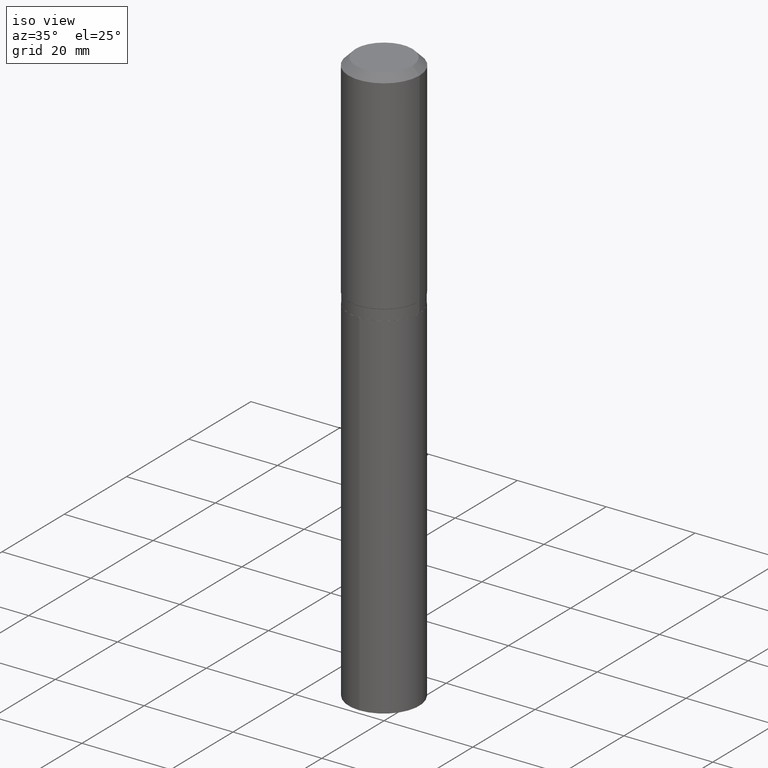
[diagram: clean part render]
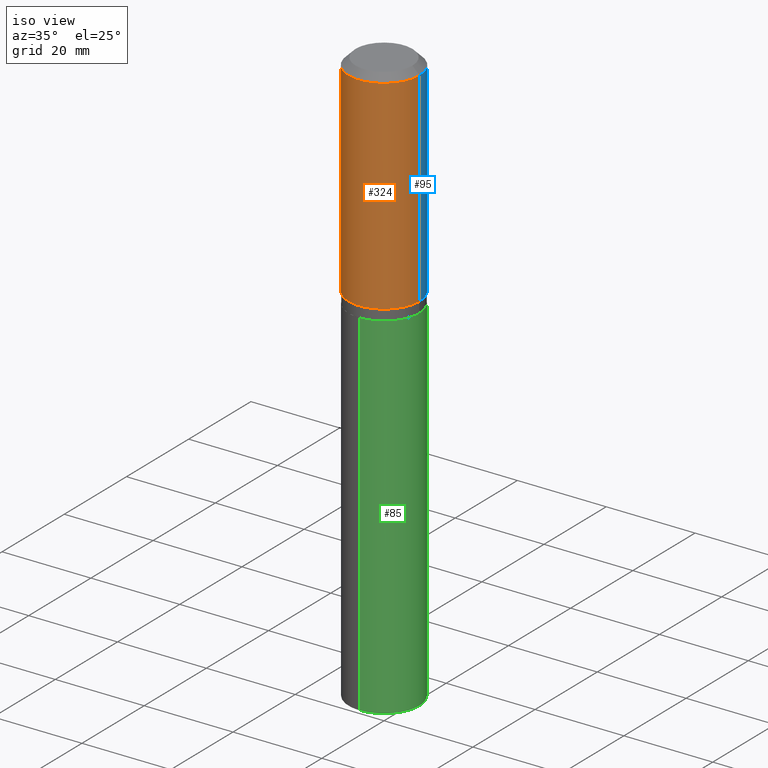
[diagram: same view with three faces highlighted in distinct colors, each labeled with its STEP entity id]
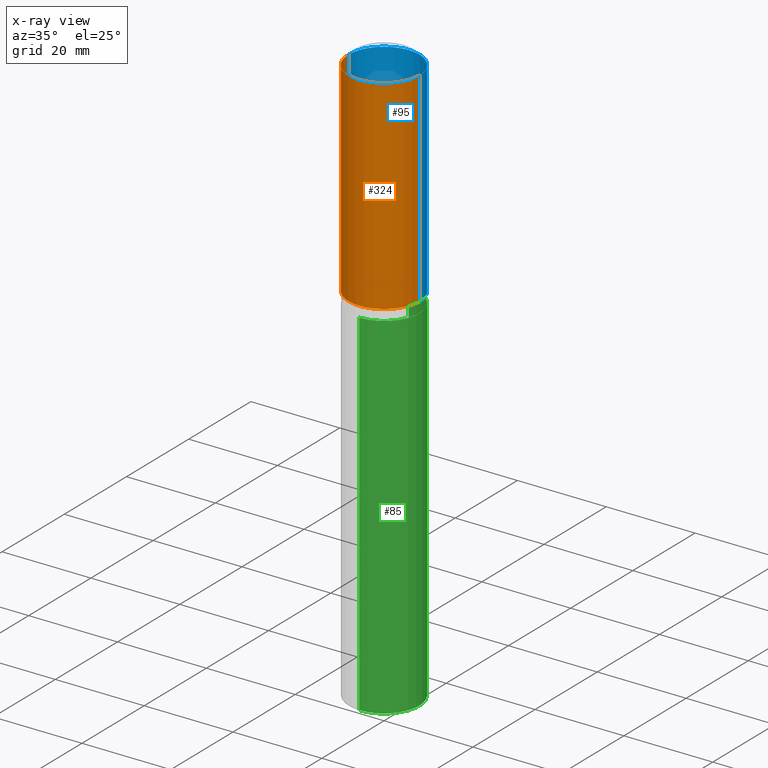
[diagram: x-ray of the same camera — body ghosted, the three highlighted faces saturated]
A machine part, iso view with three faces highlighted in distinct colors.
The next image is the same camera in x-ray (body ghosted, the three faces saturated) — at least one of them is partly hidden behind the body in this view.
Their STEP definitions:

[orange] entity #324 — the highlighted cylindrical surface (partial cylindrical patch) has radius 7.9997 mm, axis along (-0, 0, 1).
#30 = CIRCLE ( 'NONE', #221, 0.3149500000000000077 ) ;
#38 = DIRECTION ( 'NONE',  ( -2.445468806185136877E-29, 3.491481338843145188E-15, 1.000000000000000000 ) ) ;
#76 = VECTOR ( 'NONE', #38, 39.37007874015748143 ) ;
#79 = CARTESIAN_POINT ( 'NONE',  ( -0.3149500000000000077, -1.139699956480256043E-15, -0.06299000000000036514 ) ) ;
#80 = LINE ( 'NONE', #455, #76 ) ;
#81 = CARTESIAN_POINT ( 'NONE',  ( 0.000000000000000000, 0.000000000000000000, 0.000000000000000000 ) ) ;
#84 = VERTEX_POINT ( 'NONE', #115 ) ;
#90 = VERTEX_POINT ( 'NONE', #79 ) ;
#99 = VERTEX_POINT ( 'NONE', #336 ) ;
#115 = CARTESIAN_POINT ( 'NONE',  ( -0.3149500000000002298, -4.297325849703217821E-15, -1.871749999999999137 ) ) ;
#118 = VECTOR ( 'NONE', #416, 39.37007874015748143 ) ;
#139 = DIRECTION ( 'NONE',  ( 1.000000000000000000, -6.982962677686268288E-15, 0.000000000000000000 ) ) ;
#151 = ORIENTED_EDGE ( 'NONE', *, *, #187, .F. ) ;
#153 = EDGE_CURVE ( 'NONE', #84, #99, #265, .T. ) ;
#160 = LINE ( 'NONE', #235, #118 ) ;
#165 = FACE_OUTER_BOUND ( 'NONE', #390, .T. ) ;
#175 = ORIENTED_EDGE ( 'NONE', *, *, #153, .T. ) ;
#187 = EDGE_CURVE ( 'NONE', #90, #251, #30, .T. ) ;
#196 = CYLINDRICAL_SURFACE ( 'NONE', #425, 0.3149500000000001743 ) ;
#218 = CARTESIAN_POINT ( 'NONE',  ( 1.540400801016026329E-30, -2.199284095337310135E-16, -0.06299000000000036514 ) ) ;
#221 = AXIS2_PLACEMENT_3D ( 'NONE', #218, #361, #285 ) ;
#235 = CARTESIAN_POINT ( 'NONE',  ( 0.3149500000000001743, -2.199284095337290660E-15, 1.535751875536930690E-29 ) ) ;
#251 = VERTEX_POINT ( 'NONE', #444 ) ;
#256 = DIRECTION ( 'NONE',  ( -2.445468806185136597E-29, 3.491481338843145583E-15, 1.000000000000000000 ) ) ;
#265 = CIRCLE ( 'NONE', #351, 0.3149500000000002298 ) ;
#285 = DIRECTION ( 'NONE',  ( 1.000000000000000000, -6.982962677686266711E-15, 0.000000000000000000 ) ) ;
#324 = ADVANCED_FACE ( 'NONE', ( #165 ), #196, .T. ) ;
#326 = ORIENTED_EDGE ( 'NONE', *, *, #350, .F. ) ;
#332 = CARTESIAN_POINT ( 'NONE',  ( 4.577306237977027909E-29, -6.535180195979654595E-15, -1.871749999999999137 ) ) ;
#336 = CARTESIAN_POINT ( 'NONE',  ( 0.3149500000000002298, -8.734464291316946833E-15, -1.871749999999999137 ) ) ;
#347 = DIRECTION ( 'NONE',  ( 1.000000000000000000, -6.982962677686265922E-15, 4.876176775795935232E-29 ) ) ;
#350 = EDGE_CURVE ( 'NONE', #84, #90, #80, .T. ) ;
#351 = AXIS2_PLACEMENT_3D ( 'NONE', #332, #256, #139 ) ;
#361 = DIRECTION ( 'NONE',  ( -2.445468806185136597E-29, 3.491481338843145583E-15, 1.000000000000000000 ) ) ;
#374 = EDGE_CURVE ( 'NONE', #99, #251, #160, .T. ) ;
#390 = EDGE_LOOP ( 'NONE', ( #326, #175, #433, #151 ) ) ;
#416 = DIRECTION ( 'NONE',  ( -2.445468806185136877E-29, 3.491481338843145188E-15, 1.000000000000000000 ) ) ;
#419 = DIRECTION ( 'NONE',  ( -2.445468806185136597E-29, 3.491481338843145583E-15, 1.000000000000000000 ) ) ;
#425 = AXIS2_PLACEMENT_3D ( 'NONE', #81, #419, #347 ) ;
#433 = ORIENTED_EDGE ( 'NONE', *, *, #374, .T. ) ;
#444 = CARTESIAN_POINT ( 'NONE',  ( 0.3149500000000000077, -2.419212504871020909E-15, -0.06299000000000036514 ) ) ;
#455 = CARTESIAN_POINT ( 'NONE',  ( -0.3149500000000001743, 2.237854346276436774E-15, -1.549218606675783237E-29 ) ) ;

[blue] entity #95 — the highlighted cylindrical surface (partial cylindrical patch) has radius 7.9997 mm, axis along (-0, 0, 1).
#12 = ORIENTED_EDGE ( 'NONE', *, *, #374, .F. ) ;
#19 = EDGE_CURVE ( 'NONE', #251, #90, #202, .T. ) ;
#38 = DIRECTION ( 'NONE',  ( -2.445468806185136877E-29, 3.491481338843145188E-15, 1.000000000000000000 ) ) ;
#65 = AXIS2_PLACEMENT_3D ( 'NONE', #440, #325, #447 ) ;
#68 = CARTESIAN_POINT ( 'NONE',  ( 1.540400801016026329E-30, -2.199284095337310135E-16, -0.06299000000000036514 ) ) ;
#76 = VECTOR ( 'NONE', #38, 39.37007874015748143 ) ;
#79 = CARTESIAN_POINT ( 'NONE',  ( -0.3149500000000000077, -1.139699956480256043E-15, -0.06299000000000036514 ) ) ;
#80 = LINE ( 'NONE', #455, #76 ) ;
#84 = VERTEX_POINT ( 'NONE', #115 ) ;
#90 = VERTEX_POINT ( 'NONE', #79 ) ;
#95 = ADVANCED_FACE ( 'NONE', ( #377 ), #150, .T. ) ;
#96 = EDGE_LOOP ( 'NONE', ( #178, #437, #212, #12 ) ) ;
#99 = VERTEX_POINT ( 'NONE', #336 ) ;
#103 = DIRECTION ( 'NONE',  ( -2.445468806185136597E-29, 3.491481338843145583E-15, 1.000000000000000000 ) ) ;
#115 = CARTESIAN_POINT ( 'NONE',  ( -0.3149500000000002298, -4.297325849703217821E-15, -1.871749999999999137 ) ) ;
#118 = VECTOR ( 'NONE', #416, 39.37007874015748143 ) ;
#125 = CIRCLE ( 'NONE', #65, 0.3149500000000002298 ) ;
#143 = AXIS2_PLACEMENT_3D ( 'NONE', #68, #439, #474 ) ;
#150 = CYLINDRICAL_SURFACE ( 'NONE', #376, 0.3149500000000001743 ) ;
#160 = LINE ( 'NONE', #235, #118 ) ;
#178 = ORIENTED_EDGE ( 'NONE', *, *, #216, .T. ) ;
#202 = CIRCLE ( 'NONE', #143, 0.3149500000000000077 ) ;
#212 = ORIENTED_EDGE ( 'NONE', *, *, #19, .F. ) ;
#216 = EDGE_CURVE ( 'NONE', #99, #84, #125, .T. ) ;
#235 = CARTESIAN_POINT ( 'NONE',  ( 0.3149500000000001743, -2.199284095337290660E-15, 1.535751875536930690E-29 ) ) ;
#251 = VERTEX_POINT ( 'NONE', #444 ) ;
#325 = DIRECTION ( 'NONE',  ( -2.445468806185136597E-29, 3.491481338843145583E-15, 1.000000000000000000 ) ) ;
#327 = CARTESIAN_POINT ( 'NONE',  ( 0.000000000000000000, 0.000000000000000000, 0.000000000000000000 ) ) ;
#336 = CARTESIAN_POINT ( 'NONE',  ( 0.3149500000000002298, -8.734464291316946833E-15, -1.871749999999999137 ) ) ;
#350 = EDGE_CURVE ( 'NONE', #84, #90, #80, .T. ) ;
#374 = EDGE_CURVE ( 'NONE', #99, #251, #160, .T. ) ;
#376 = AXIS2_PLACEMENT_3D ( 'NONE', #327, #103, #467 ) ;
#377 = FACE_OUTER_BOUND ( 'NONE', #96, .T. ) ;
#416 = DIRECTION ( 'NONE',  ( -2.445468806185136877E-29, 3.491481338843145188E-15, 1.000000000000000000 ) ) ;
#437 = ORIENTED_EDGE ( 'NONE', *, *, #350, .T. ) ;
#439 = DIRECTION ( 'NONE',  ( -2.445468806185136597E-29, 3.491481338843145583E-15, 1.000000000000000000 ) ) ;
#440 = CARTESIAN_POINT ( 'NONE',  ( 4.577306237977027909E-29, -6.535180195979654595E-15, -1.871749999999999137 ) ) ;
#444 = CARTESIAN_POINT ( 'NONE',  ( 0.3149500000000000077, -2.419212504871020909E-15, -0.06299000000000036514 ) ) ;
#447 = DIRECTION ( 'NONE',  ( 1.000000000000000000, -6.982962677686268288E-15, 0.000000000000000000 ) ) ;
#455 = CARTESIAN_POINT ( 'NONE',  ( -0.3149500000000001743, 2.237854346276436774E-15, -1.549218606675783237E-29 ) ) ;
#467 = DIRECTION ( 'NONE',  ( 1.000000000000000000, -6.982962677686265922E-15, 4.876176775795935232E-29 ) ) ;
#474 = DIRECTION ( 'NONE',  ( 1.000000000000000000, -6.982962677686266711E-15, 0.000000000000000000 ) ) ;

[green] entity #85 — the highlighted cylindrical surface (partial cylindrical patch) has radius 7.9375 mm, axis along (-0, 0, 1).
#5 = EDGE_CURVE ( 'NONE', #364, #442, #224, .T. ) ;
#37 = DIRECTION ( 'NONE',  ( -6.982962677686265133E-15, -1.000000000000000000, 3.496765431890256920E-15 ) ) ;
#54 = VECTOR ( 'NONE', #289, 39.37007874015748143 ) ;
#60 = EDGE_CURVE ( 'NONE', #403, #73, #292, .T. ) ;
#73 = VERTEX_POINT ( 'NONE', #106 ) ;
#85 = ADVANCED_FACE ( 'NONE', ( #381 ), #227, .T. ) ;
#91 = CARTESIAN_POINT ( 'NONE',  ( 2.220446049250360807E-15, 0.3124999999999931166, -1.968300000000000383 ) ) ;
#106 = CARTESIAN_POINT ( 'NONE',  ( 2.220446049250438510E-15, 0.3124999999999822364, -5.112902976370331309 ) ) ;
#138 = DIRECTION ( 'NONE',  ( -2.445482820616831825E-29, 3.491461269379306004E-15, 1.000000000000000000 ) ) ;
#184 = ORIENTED_EDGE ( 'NONE', *, *, #478, .T. ) ;
#190 = CARTESIAN_POINT ( 'NONE',  ( 4.813416251214202584E-29, -6.872282719244960739E-15, -1.968299999999999272 ) ) ;
#197 = EDGE_CURVE ( 'NONE', #403, #364, #254, .T. ) ;
#201 = EDGE_LOOP ( 'NONE', ( #217, #184, #354, #330 ) ) ;
#209 = DIRECTION ( 'NONE',  ( -2.445482820616831825E-29, 3.491461269379306004E-15, 1.000000000000000000 ) ) ;
#217 = ORIENTED_EDGE ( 'NONE', *, *, #60, .T. ) ;
#224 = CIRCLE ( 'NONE', #345, 0.3125000000000000000 ) ;
#227 = CYLINDRICAL_SURFACE ( 'NONE', #335, 0.3125000000000000000 ) ;
#232 = CARTESIAN_POINT ( 'NONE',  ( -2.182175836776833707E-15, -0.3125000000000178191, -5.112902976370329533 ) ) ;
#254 = LINE ( 'NONE', #489, #54 ) ;
#255 = CARTESIAN_POINT ( 'NONE',  ( 4.813416251214202584E-29, -6.872282719244960739E-15, -1.968299999999999272 ) ) ;
#268 = CARTESIAN_POINT ( 'NONE',  ( 2.220446049250438510E-15, 0.3124999999999931166, -1.968300000000000383 ) ) ;
#271 = CARTESIAN_POINT ( 'NONE',  ( -2.182175836776910227E-15, -0.3125000000000069389, -1.968299999999998162 ) ) ;
#282 = LINE ( 'NONE', #91, #386 ) ;
#289 = DIRECTION ( 'NONE',  ( -2.445482820616831825E-29, 3.491461269379306004E-15, 1.000000000000000000 ) ) ;
#292 = CIRCLE ( 'NONE', #429, 0.3125000000000000000 ) ;
#306 = DIRECTION ( 'NONE',  ( -2.445482820616831825E-29, 3.491461269379306004E-15, 1.000000000000000000 ) ) ;
#330 = ORIENTED_EDGE ( 'NONE', *, *, #197, .F. ) ;
#335 = AXIS2_PLACEMENT_3D ( 'NONE', #190, #306, #37 ) ;
#345 = AXIS2_PLACEMENT_3D ( 'NONE', #255, #138, #409 ) ;
#354 = ORIENTED_EDGE ( 'NONE', *, *, #5, .F. ) ;
#364 = VERTEX_POINT ( 'NONE', #271 ) ;
#381 = FACE_OUTER_BOUND ( 'NONE', #201, .T. ) ;
#386 = VECTOR ( 'NONE', #209, 39.37007874015748143 ) ;
#403 = VERTEX_POINT ( 'NONE', #232 ) ;
#409 = DIRECTION ( 'NONE',  ( -6.982962677686265133E-15, -1.000000000000000000, 3.496765431890256920E-15 ) ) ;
#429 = AXIS2_PLACEMENT_3D ( 'NONE', #443, #435, #487 ) ;
#435 = DIRECTION ( 'NONE',  ( -2.445482820616831825E-29, 3.491461269379306004E-15, 1.000000000000000000 ) ) ;
#442 = VERTEX_POINT ( 'NONE', #268 ) ;
#443 = CARTESIAN_POINT ( 'NONE',  ( 1.250348880758840458E-28, -1.785154221881686105E-14, -5.112902976370330421 ) ) ;
#478 = EDGE_CURVE ( 'NONE', #73, #442, #282, .T. ) ;
#487 = DIRECTION ( 'NONE',  ( -6.982962677686265133E-15, -1.000000000000000000, 3.496765431890256920E-15 ) ) ;
#489 = CARTESIAN_POINT ( 'NONE',  ( -2.182175836776910227E-15, -0.3125000000000069389, -1.968299999999998162 ) ) ;